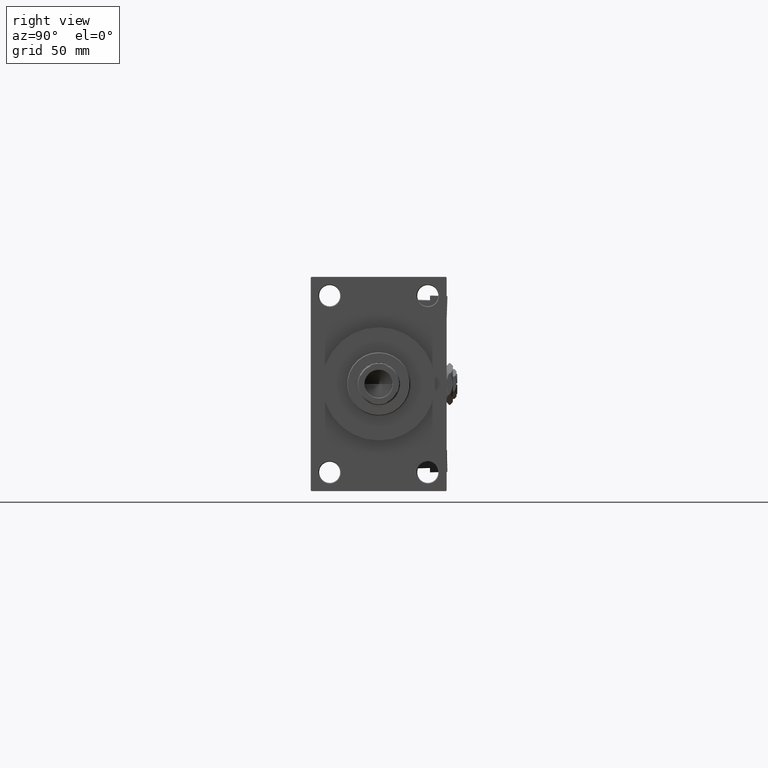
[diagram: clean part render]
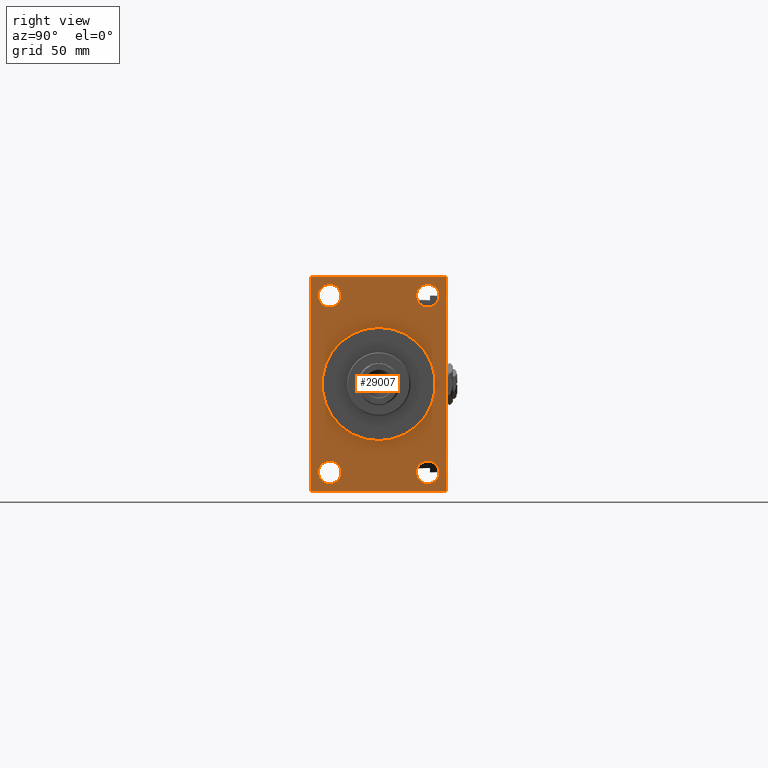
[diagram: same view with one face highlighted and labeled with its STEP entity id]
A machine part, right view. The second image highlights one B-rep face of the part: STEP entity #29007.
In plain terms, the highlighted planar face has unit normal (-1, 0, 0).
Its self-contained STEP definition (entity closure, byte-faithful):
#13 = EDGE_CURVE ( 'NONE', #24845, #34153, #4526, .T. ) ;
#28 = ORIENTED_EDGE ( 'NONE', *, *, #41991, .T. ) ;
#356 = DIRECTION ( 'NONE',  ( -1.000000000000000000, 0.000000000000000000, -0.000000000000000000 ) ) ;
#397 = DIRECTION ( 'NONE',  ( 1.000000000000000000, 0.000000000000000000, 0.000000000000000000 ) ) ;
#1161 = PLANE ( 'NONE',  #48675 ) ;
#1239 = CARTESIAN_POINT ( 'NONE',  ( 389.9999999999999432, 45.00000000000002132, 70.50000000000000000 ) ) ;
#1310 = EDGE_CURVE ( 'NONE', #44967, #5984, #29549, .T. ) ;
#1678 = EDGE_CURVE ( 'NONE', #34153, #24845, #22897, .T. ) ;
#2463 = CARTESIAN_POINT ( 'NONE',  ( 389.9999999999999432, -44.49999999999994316, -71.00000000000000000 ) ) ;
#2729 = EDGE_CURVE ( 'NONE', #13548, #9526, #42887, .T. ) ;
#3018 = ORIENTED_EDGE ( 'NONE', *, *, #2729, .T. ) ;
#3139 = VECTOR ( 'NONE', #13977, 1000.000000000000000 ) ;
#3810 = AXIS2_PLACEMENT_3D ( 'NONE', #5133, #22062, #29603 ) ;
#4351 = CIRCLE ( 'NONE', #27619, 7.500000000000047962 ) ;
#4526 = CIRCLE ( 'NONE', #7867, 7.500000000000055067 ) ;
#4598 = AXIS2_PLACEMENT_3D ( 'NONE', #29317, #12670, #25672 ) ;
#4628 = CIRCLE ( 'NONE', #3810, 7.500000000000047962 ) ;
#5133 = CARTESIAN_POINT ( 'NONE',  ( 389.9999999999999432, -32.50000000000000000, 58.50000000000000711 ) ) ;
#5154 = EDGE_CURVE ( 'NONE', #38916, #30960, #4628, .T. ) ;
#5209 = EDGE_CURVE ( 'NONE', #30960, #38916, #37915, .T. ) ;
#5320 = FACE_OUTER_BOUND ( 'NONE', #39392, .T. ) ;
#5727 = VERTEX_POINT ( 'NONE', #41463 ) ;
#5888 = VERTEX_POINT ( 'NONE', #50034 ) ;
#5984 = VERTEX_POINT ( 'NONE', #7313 ) ;
#6947 = VERTEX_POINT ( 'NONE', #46590 ) ;
#7094 = AXIS2_PLACEMENT_3D ( 'NONE', #48142, #28350, #44246 ) ;
#7313 = CARTESIAN_POINT ( 'NONE',  ( 389.9999999999999432, 0.000000000000000000, 37.50000000000000711 ) ) ;
#7613 = CARTESIAN_POINT ( 'NONE',  ( 389.9999999999999432, 32.50000000000000711, 50.99999999999996447 ) ) ;
#7618 = CARTESIAN_POINT ( 'NONE',  ( 389.9999999999999432, 4.592425496802575156E-15, -37.50000000000000711 ) ) ;
#7867 = AXIS2_PLACEMENT_3D ( 'NONE', #40186, #356, #12597 ) ;
#8162 = EDGE_CURVE ( 'NONE', #5888, #39570, #51145, .T. ) ;
#8680 = LINE ( 'NONE', #24560, #19829 ) ;
#9004 = EDGE_CURVE ( 'NONE', #38188, #31856, #36886, .T. ) ;
#9142 = CARTESIAN_POINT ( 'NONE',  ( 389.9999999999999432, 32.50000000000000711, -58.50000000000000000 ) ) ;
#9284 = CARTESIAN_POINT ( 'NONE',  ( 389.9999999999999432, 45.00000000000002132, 71.00000000000000000 ) ) ;
#9526 = VERTEX_POINT ( 'NONE', #7613 ) ;
#10069 = VECTOR ( 'NONE', #22451, 1000.000000000000000 ) ;
#10265 = ORIENTED_EDGE ( 'NONE', *, *, #42051, .T. ) ;
#10288 = LINE ( 'NONE', #18364, #35398 ) ;
#11544 = DIRECTION ( 'NONE',  ( -1.000000000000000000, 0.000000000000000000, -0.000000000000000000 ) ) ;
#11621 = VERTEX_POINT ( 'NONE', #11803 ) ;
#11776 = DIRECTION ( 'NONE',  ( 0.000000000000000000, -0.7071067811865474617, 0.7071067811865474617 ) ) ;
#11803 = CARTESIAN_POINT ( 'NONE',  ( 389.9999999999999432, 32.50000000000000711, -66.00000000000005684 ) ) ;
#12279 = CARTESIAN_POINT ( 'NONE',  ( 389.9999999999999432, -32.50000000000000000, -50.99999999999992895 ) ) ;
#12597 = DIRECTION ( 'NONE',  ( 0.000000000000000000, 0.000000000000000000, 1.000000000000000000 ) ) ;
#12670 = DIRECTION ( 'NONE',  ( 1.000000000000000000, 0.000000000000000000, 0.000000000000000000 ) ) ;
#12883 = CARTESIAN_POINT ( 'NONE',  ( 389.9999999999999432, 0.000000000000000000, 0.000000000000000000 ) ) ;
#13548 = VERTEX_POINT ( 'NONE', #17282 ) ;
#13826 = ORIENTED_EDGE ( 'NONE', *, *, #13, .T. ) ;
#13952 = ORIENTED_EDGE ( 'NONE', *, *, #1310, .F. ) ;
#13977 = DIRECTION ( 'NONE',  ( 0.000000000000000000, -1.000000000000000000, -1.541976423090495387E-16 ) ) ;
#14706 = AXIS2_PLACEMENT_3D ( 'NONE', #9142, #24766, #21652 ) ;
#14772 = ORIENTED_EDGE ( 'NONE', *, *, #9004, .T. ) ;
#14948 = DIRECTION ( 'NONE',  ( -1.000000000000000000, 0.000000000000000000, -0.000000000000000000 ) ) ;
#15233 = CARTESIAN_POINT ( 'NONE',  ( 389.9999999999999432, 45.00000000000001421, -70.49999999999997158 ) ) ;
#15278 = ORIENTED_EDGE ( 'NONE', *, *, #49941, .F. ) ;
#16350 = VECTOR ( 'NONE', #47120, 1000.000000000000000 ) ;
#16630 = EDGE_LOOP ( 'NONE', ( #15278, #13952 ) ) ;
#16797 = FACE_BOUND ( 'NONE', #16630, .T. ) ;
#16946 = ORIENTED_EDGE ( 'NONE', *, *, #36416, .T. ) ;
#17050 = DIRECTION ( 'NONE',  ( -1.000000000000000000, 0.000000000000000000, -0.000000000000000000 ) ) ;
#17250 = VECTOR ( 'NONE', #31111, 999.9999999999998863 ) ;
#17282 = CARTESIAN_POINT ( 'NONE',  ( 389.9999999999999432, 32.50000000000000711, 66.00000000000005684 ) ) ;
#17576 = FACE_BOUND ( 'NONE', #43498, .T. ) ;
#17649 = DIRECTION ( 'NONE',  ( 0.000000000000000000, 0.000000000000000000, 1.000000000000000000 ) ) ;
#18364 = CARTESIAN_POINT ( 'NONE',  ( 389.9999999999999432, -44.49999999999997158, -71.00000000000000000 ) ) ;
#19232 = VERTEX_POINT ( 'NONE', #28802 ) ;
#19303 = EDGE_CURVE ( 'NONE', #5888, #33695, #27099, .T. ) ;
#19372 = DIRECTION ( 'NONE',  ( 0.000000000000000000, 0.7071067811865965336, -0.7071067811864985009 ) ) ;
#19448 = CARTESIAN_POINT ( 'NONE',  ( 389.9999999999999432, 32.50000000000000711, 58.50000000000000711 ) ) ;
#19719 = ORIENTED_EDGE ( 'NONE', *, *, #32761, .F. ) ;
#19829 = VECTOR ( 'NONE', #47751, 1000.000000000000000 ) ;
#19875 = DIRECTION ( 'NONE',  ( 0.000000000000000000, 0.000000000000000000, 1.000000000000000000 ) ) ;
#20478 = EDGE_LOOP ( 'NONE', ( #22527, #3018 ) ) ;
#20692 = FACE_BOUND ( 'NONE', #20478, .T. ) ;
#20925 = EDGE_LOOP ( 'NONE', ( #43657, #50173 ) ) ;
#21590 = VECTOR ( 'NONE', #11776, 1000.000000000000114 ) ;
#21652 = DIRECTION ( 'NONE',  ( 0.000000000000000000, 0.000000000000000000, 1.000000000000000000 ) ) ;
#22062 = DIRECTION ( 'NONE',  ( -1.000000000000000000, 0.000000000000000000, -0.000000000000000000 ) ) ;
#22227 = CIRCLE ( 'NONE', #14706, 7.500000000000062172 ) ;
#22439 = CARTESIAN_POINT ( 'NONE',  ( 389.9999999999999432, -32.50000000000000000, -66.00000000000004263 ) ) ;
#22449 = ORIENTED_EDGE ( 'NONE', *, *, #19303, .F. ) ;
#22451 = DIRECTION ( 'NONE',  ( 0.000000000000000000, -1.000000000000000000, -1.541976423090495633E-16 ) ) ;
#22527 = ORIENTED_EDGE ( 'NONE', *, *, #22779, .T. ) ;
#22776 = EDGE_CURVE ( 'NONE', #11621, #19232, #50080, .T. ) ;
#22779 = EDGE_CURVE ( 'NONE', #9526, #13548, #4351, .T. ) ;
#22897 = CIRCLE ( 'NONE', #7094, 7.500000000000055067 ) ;
#23353 = CARTESIAN_POINT ( 'NONE',  ( 389.9999999999999432, 45.00000000000001421, -70.49999999999997158 ) ) ;
#24560 = CARTESIAN_POINT ( 'NONE',  ( 389.9999999999999432, -44.99999999999997158, 70.49999999999998579 ) ) ;
#24766 = DIRECTION ( 'NONE',  ( -1.000000000000000000, 0.000000000000000000, -0.000000000000000000 ) ) ;
#24845 = VERTEX_POINT ( 'NONE', #22439 ) ;
#24857 = DIRECTION ( 'NONE',  ( 0.000000000000000000, 0.000000000000000000, -1.000000000000000000 ) ) ;
#24878 = VECTOR ( 'NONE', #31307, 1000.000000000000000 ) ;
#25062 = AXIS2_PLACEMENT_3D ( 'NONE', #32424, #397, #24857 ) ;
#25163 = ORIENTED_EDGE ( 'NONE', *, *, #33700, .T. ) ;
#25372 = FACE_BOUND ( 'NONE', #37028, .T. ) ;
#25432 = AXIS2_PLACEMENT_3D ( 'NONE', #19448, #43140, #34817 ) ;
#25672 = DIRECTION ( 'NONE',  ( 0.000000000000000000, 0.000000000000000000, -1.000000000000000000 ) ) ;
#25966 = ORIENTED_EDGE ( 'NONE', *, *, #8162, .T. ) ;
#26879 = CARTESIAN_POINT ( 'NONE',  ( 389.9999999999999432, 44.50000000000002132, 71.00000000000000000 ) ) ;
#27099 = LINE ( 'NONE', #46137, #10069 ) ;
#27140 = LINE ( 'NONE', #43022, #24878 ) ;
#27619 = AXIS2_PLACEMENT_3D ( 'NONE', #51379, #11544, #50861 ) ;
#28350 = DIRECTION ( 'NONE',  ( -1.000000000000000000, 0.000000000000000000, -0.000000000000000000 ) ) ;
#28355 = CIRCLE ( 'NONE', #25062, 37.50000000000000711 ) ;
#28740 = DIRECTION ( 'NONE',  ( -0.000000000000000000, 0.000000000000000000, 1.000000000000000000 ) ) ;
#28802 = CARTESIAN_POINT ( 'NONE',  ( 389.9999999999999432, 32.50000000000000711, -50.99999999999993605 ) ) ;
#28851 = CARTESIAN_POINT ( 'NONE',  ( 389.9999999999999432, -32.50000000000000000, 50.99999999999996447 ) ) ;
#29007 = ADVANCED_FACE ( 'NONE', ( #40473, #17576, #25372, #20692, #16797, #5320 ), #1161, .F. ) ;
#29317 = CARTESIAN_POINT ( 'NONE',  ( 389.9999999999999432, 0.000000000000000000, 0.000000000000000000 ) ) ;
#29549 = CIRCLE ( 'NONE', #4598, 37.50000000000000711 ) ;
#29603 = DIRECTION ( 'NONE',  ( 0.000000000000000000, 0.000000000000000000, 1.000000000000000000 ) ) ;
#30960 = VERTEX_POINT ( 'NONE', #28851 ) ;
#31111 = DIRECTION ( 'NONE',  ( -0.000000000000000000, 0.7071067811865376918, 0.7071067811865574537 ) ) ;
#31246 = CARTESIAN_POINT ( 'NONE',  ( 389.9999999999999432, 45.00000000000002132, 71.00000000000000000 ) ) ;
#31307 = DIRECTION ( 'NONE',  ( 0.000000000000000000, 0.000000000000000000, -1.000000000000000000 ) ) ;
#31856 = VERTEX_POINT ( 'NONE', #38729 ) ;
#32348 = ORIENTED_EDGE ( 'NONE', *, *, #22776, .T. ) ;
#32424 = CARTESIAN_POINT ( 'NONE',  ( 389.9999999999999432, 0.000000000000000000, 0.000000000000000000 ) ) ;
#32761 = EDGE_CURVE ( 'NONE', #46615, #39570, #51025, .T. ) ;
#33695 = VERTEX_POINT ( 'NONE', #2463 ) ;
#33700 = EDGE_CURVE ( 'NONE', #5727, #33695, #10288, .T. ) ;
#34089 = CARTESIAN_POINT ( 'NONE',  ( 389.9999999999999432, -32.50000000000000000, 66.00000000000005684 ) ) ;
#34153 = VERTEX_POINT ( 'NONE', #12279 ) ;
#34817 = DIRECTION ( 'NONE',  ( 0.000000000000000000, 0.000000000000000000, 1.000000000000000000 ) ) ;
#35398 = VECTOR ( 'NONE', #19372, 1000.000000000000114 ) ;
#36116 = ORIENTED_EDGE ( 'NONE', *, *, #39247, .T. ) ;
#36416 = EDGE_CURVE ( 'NONE', #19232, #11621, #22227, .T. ) ;
#36886 = LINE ( 'NONE', #9284, #3139 ) ;
#37028 = EDGE_LOOP ( 'NONE', ( #32348, #16946 ) ) ;
#37915 = CIRCLE ( 'NONE', #40386, 7.500000000000047962 ) ;
#38188 = VERTEX_POINT ( 'NONE', #44436 ) ;
#38729 = CARTESIAN_POINT ( 'NONE',  ( 389.9999999999999432, -44.49999999999995026, 70.99999999999998579 ) ) ;
#38916 = VERTEX_POINT ( 'NONE', #34089 ) ;
#39247 = EDGE_CURVE ( 'NONE', #31856, #6947, #8680, .T. ) ;
#39392 = EDGE_LOOP ( 'NONE', ( #28, #25163, #22449, #25966, #19719, #10265, #14772, #36116 ) ) ;
#39399 = CARTESIAN_POINT ( 'NONE',  ( 389.9999999999999432, 32.50000000000000711, -58.50000000000000000 ) ) ;
#39570 = VERTEX_POINT ( 'NONE', #23353 ) ;
#40186 = CARTESIAN_POINT ( 'NONE',  ( 389.9999999999999432, -32.50000000000000000, -58.49999999999999289 ) ) ;
#40386 = AXIS2_PLACEMENT_3D ( 'NONE', #46005, #49904, #17649 ) ;
#40473 = FACE_BOUND ( 'NONE', #20925, .T. ) ;
#41463 = CARTESIAN_POINT ( 'NONE',  ( 389.9999999999999432, -44.99999999999997158, -70.50000000000005684 ) ) ;
#41991 = EDGE_CURVE ( 'NONE', #6947, #5727, #27140, .T. ) ;
#42051 = EDGE_CURVE ( 'NONE', #46615, #38188, #50313, .T. ) ;
#42887 = CIRCLE ( 'NONE', #25432, 7.500000000000047962 ) ;
#43022 = CARTESIAN_POINT ( 'NONE',  ( 389.9999999999999432, -44.99999999999997158, 70.99999999999998579 ) ) ;
#43140 = DIRECTION ( 'NONE',  ( -1.000000000000000000, 0.000000000000000000, -0.000000000000000000 ) ) ;
#43498 = EDGE_LOOP ( 'NONE', ( #13826, #46750 ) ) ;
#43657 = ORIENTED_EDGE ( 'NONE', *, *, #5209, .T. ) ;
#44246 = DIRECTION ( 'NONE',  ( 0.000000000000000000, 0.000000000000000000, 1.000000000000000000 ) ) ;
#44283 = AXIS2_PLACEMENT_3D ( 'NONE', #39399, #14948, #19875 ) ;
#44436 = CARTESIAN_POINT ( 'NONE',  ( 389.9999999999999432, 44.50000000000002132, 71.00000000000000000 ) ) ;
#44967 = VERTEX_POINT ( 'NONE', #7618 ) ;
#46005 = CARTESIAN_POINT ( 'NONE',  ( 389.9999999999999432, -32.50000000000000000, 58.50000000000000711 ) ) ;
#46137 = CARTESIAN_POINT ( 'NONE',  ( 389.9999999999999432, 45.00000000000001421, -70.99999999999998579 ) ) ;
#46590 = CARTESIAN_POINT ( 'NONE',  ( 389.9999999999999432, -44.99999999999997158, 70.49999999999998579 ) ) ;
#46615 = VERTEX_POINT ( 'NONE', #1239 ) ;
#46750 = ORIENTED_EDGE ( 'NONE', *, *, #1678, .T. ) ;
#47120 = DIRECTION ( 'NONE',  ( 0.000000000000000000, -4.886545002751570165E-17, -1.000000000000000000 ) ) ;
#47751 = DIRECTION ( 'NONE',  ( -0.000000000000000000, -0.7071067811865426878, -0.7071067811865524577 ) ) ;
#48142 = CARTESIAN_POINT ( 'NONE',  ( 389.9999999999999432, -32.50000000000000000, -58.49999999999999289 ) ) ;
#48675 = AXIS2_PLACEMENT_3D ( 'NONE', #12883, #17050, #28740 ) ;
#49904 = DIRECTION ( 'NONE',  ( -1.000000000000000000, 0.000000000000000000, -0.000000000000000000 ) ) ;
#49941 = EDGE_CURVE ( 'NONE', #5984, #44967, #28355, .T. ) ;
#50034 = CARTESIAN_POINT ( 'NONE',  ( 389.9999999999999432, 44.50000000000001421, -70.99999999999998579 ) ) ;
#50080 = CIRCLE ( 'NONE', #44283, 7.500000000000062172 ) ;
#50173 = ORIENTED_EDGE ( 'NONE', *, *, #5154, .T. ) ;
#50313 = LINE ( 'NONE', #26879, #21590 ) ;
#50861 = DIRECTION ( 'NONE',  ( 0.000000000000000000, 0.000000000000000000, 1.000000000000000000 ) ) ;
#51025 = LINE ( 'NONE', #31246, #16350 ) ;
#51145 = LINE ( 'NONE', #15233, #17250 ) ;
#51379 = CARTESIAN_POINT ( 'NONE',  ( 389.9999999999999432, 32.50000000000000711, 58.50000000000000711 ) ) ;